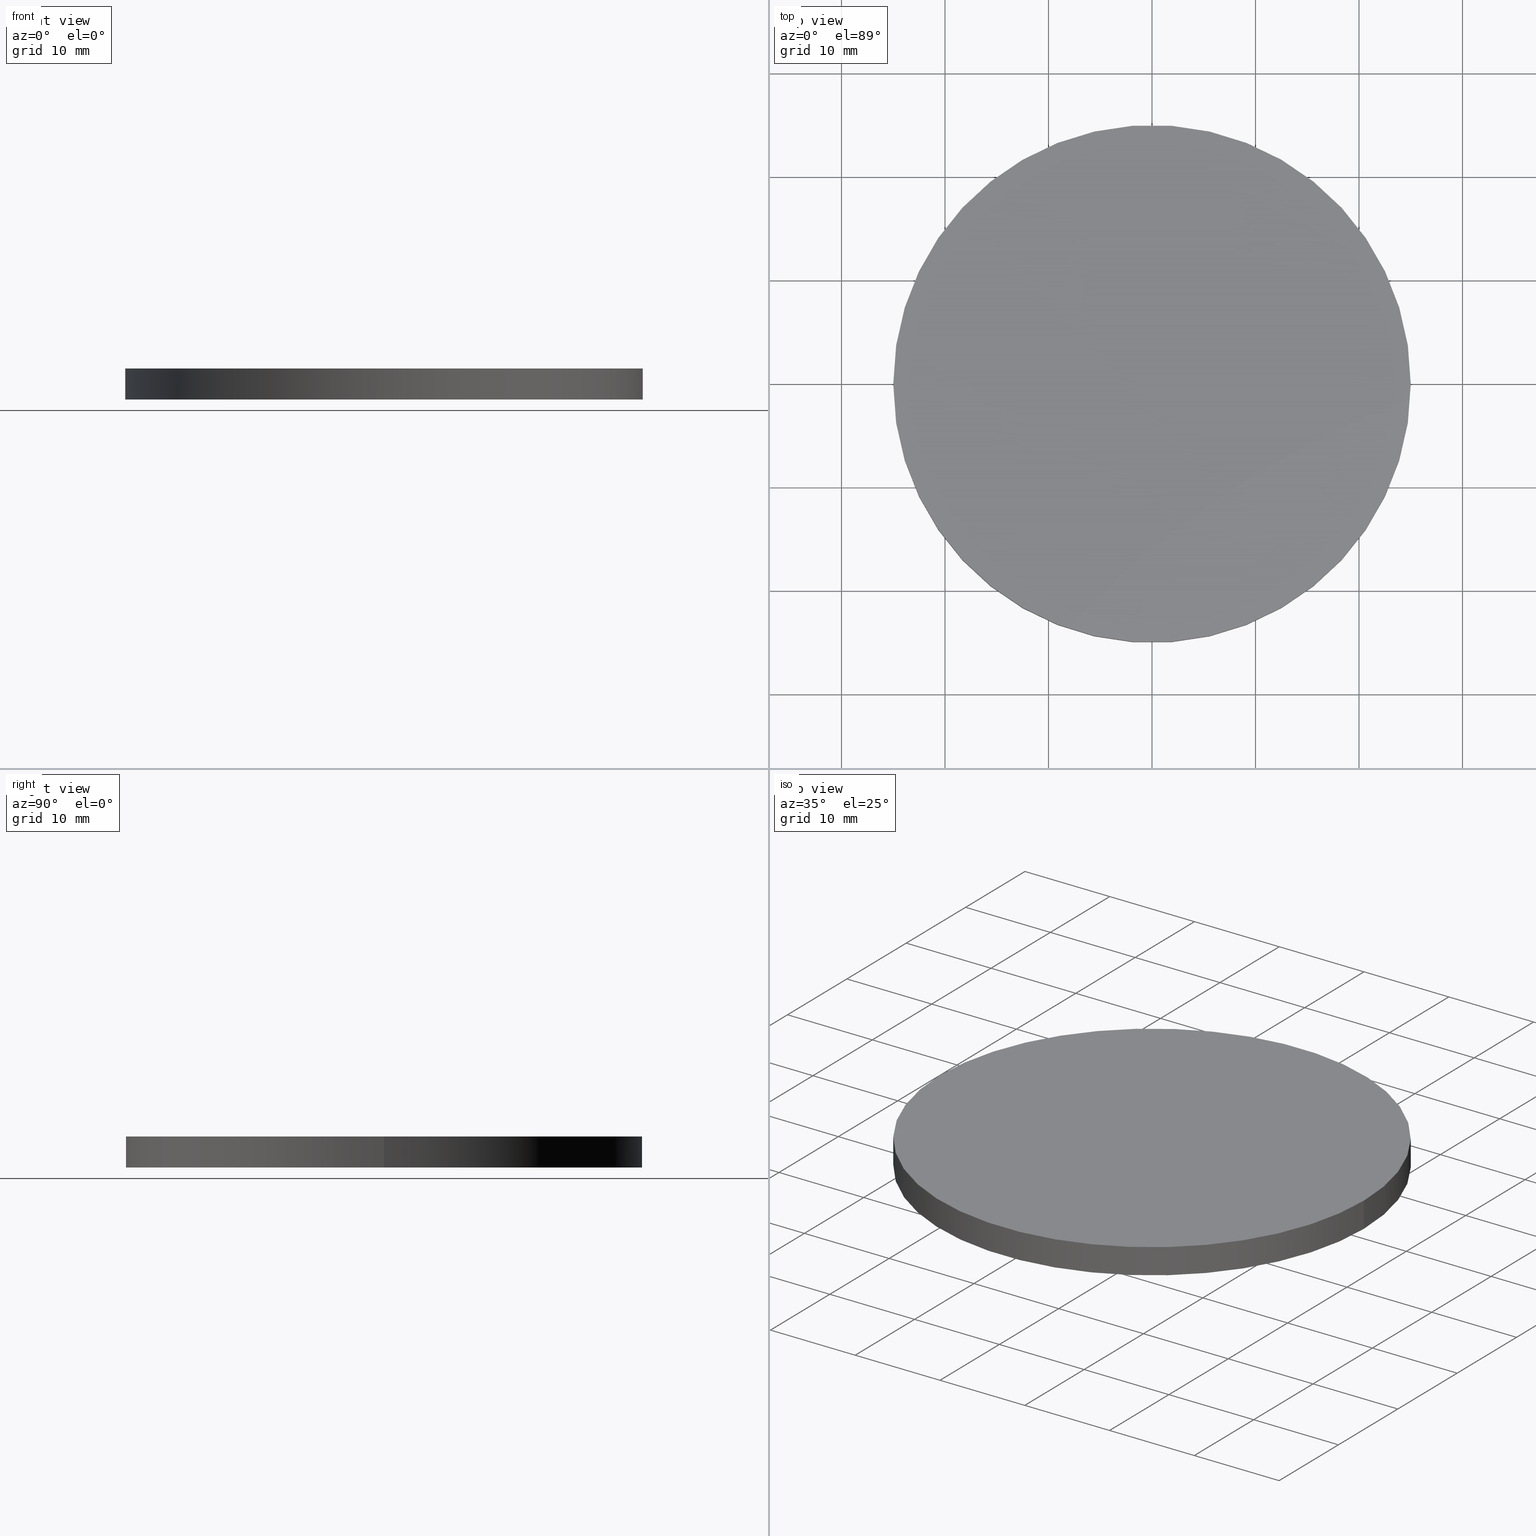
[diagram: canonical four-view strip — front | top / right | iso, engineering-drawing reading convention]
A machine part, canonical four-view strip (front | top / right | iso — engineering-drawing reading convention). The complete STEP part file that produces these views, byte-faithful:
ISO-10303-21;
HEADER;
FILE_DESCRIPTION (( 'STEP AP214' ),
    '1' );
FILE_NAME ('190131.STEP',
    '2019-07-17T06:58:16',
    ( 'user' ),
    ( '΢���й�' ),
    'SwSTEP 2.0',
    'SolidWorks 2016',
    '' );
FILE_SCHEMA (( 'AUTOMOTIVE_DESIGN' ));
ENDSEC;

DATA;
#1 = CARTESIAN_POINT ( 'NONE',  ( 0.0000000000000000000, 0.0000000000000000000, 3.000000000000000000 ) ) ;
#2 = VECTOR ( 'NONE', #96, 1000.000000000000000 ) ;
#3 = FILL_AREA_STYLE ('',( #99 ) ) ;
#4 = EDGE_CURVE ( 'NONE', #125, #10, #67, .T. ) ;
#5 = AXIS2_PLACEMENT_3D ( 'NONE', #47, #106, #34 ) ;
#6 = COLOUR_RGB ( '',1.000000000000000000, 1.000000000000000000, 1.000000000000000000 ) ;
#7 = FACE_OUTER_BOUND ( 'NONE', #80, .T. ) ;
#8 = CARTESIAN_POINT ( 'NONE',  ( 0.0000000000000000000, 0.0000000000000000000, 3.000000000000000000 ) ) ;
#9 = AXIS2_PLACEMENT_3D ( 'NONE', #131, #13, #132 ) ;
#10 = VERTEX_POINT ( 'NONE', #68 ) ;
#11 =( NAMED_UNIT ( * ) SI_UNIT ( $, .STERADIAN. ) SOLID_ANGLE_UNIT ( ) );
#12 = DIRECTION ( 'NONE',  ( 1.000000000000000000, 0.0000000000000000000, 0.0000000000000000000 ) ) ;
#13 = DIRECTION ( 'NONE',  ( 0.0000000000000000000, 0.0000000000000000000, 1.000000000000000000 ) ) ;
#14 = DIRECTION ( 'NONE',  ( 1.000000000000000000, 0.0000000000000000000, 0.0000000000000000000 ) ) ;
#15 = ORIENTED_EDGE ( 'NONE', *, *, #4, .F. ) ;
#16 = EDGE_LOOP ( 'NONE', ( #22, #91 ) ) ;
#17 =( NAMED_UNIT ( * ) PLANE_ANGLE_UNIT ( ) SI_UNIT ( $, .RADIAN. ) );
#18 = DIRECTION ( 'NONE',  ( -0.0000000000000000000, -0.0000000000000000000, -1.000000000000000000 ) ) ;
#19 =( LENGTH_UNIT ( ) NAMED_UNIT ( * ) SI_UNIT ( .MILLI., .METRE. ) );
#20 = CARTESIAN_POINT ( 'NONE',  ( 25.00000000000000000, 3.061616997868383000E-015, 3.000000000000000000 ) ) ;
#21 = CARTESIAN_POINT ( 'NONE',  ( 25.00000000000000000, 3.061616997868383000E-015, 3.000000000000000000 ) ) ;
#22 = ORIENTED_EDGE ( 'NONE', *, *, #95, .F. ) ;
#23 = SURFACE_STYLE_USAGE ( .BOTH. , #40 ) ;
#24 =( GEOMETRIC_REPRESENTATION_CONTEXT ( 3 ) GLOBAL_UNCERTAINTY_ASSIGNED_CONTEXT ( ( #37 ) ) GLOBAL_UNIT_ASSIGNED_CONTEXT ( ( #93, #59, #48 ) ) REPRESENTATION_CONTEXT ( 'NONE', 'WORKASPACE' ) );
#25 = DIRECTION ( 'NONE',  ( 1.000000000000000000, 0.0000000000000000000, 0.0000000000000000000 ) ) ;
#26 = PRESENTATION_LAYER_ASSIGNMENT (  '', '', ( #118 ) ) ;
#27 = CIRCLE ( 'NONE', #9, 25.00000000000000000 ) ;
#28 = ORIENTED_EDGE ( 'NONE', *, *, #51, .F. ) ;
#29 = UNCERTAINTY_MEASURE_WITH_UNIT (LENGTH_MEASURE( 1.000000000000000100E-005 ), #45, 'distance_accuracy_value', 'NONE');
#30 = FACE_OUTER_BOUND ( 'NONE', #52, .T. ) ;
#31 = AXIS2_PLACEMENT_3D ( 'NONE', #122, #63, #117 ) ;
#32 =( GEOMETRIC_REPRESENTATION_CONTEXT ( 3 ) GLOBAL_UNCERTAINTY_ASSIGNED_CONTEXT ( ( #29 ) ) GLOBAL_UNIT_ASSIGNED_CONTEXT ( ( #45, #128, #121 ) ) REPRESENTATION_CONTEXT ( 'NONE', 'WORKASPACE' ) );
#33 = ORIENTED_EDGE ( 'NONE', *, *, #101, .F. ) ;
#34 = DIRECTION ( 'NONE',  ( 1.000000000000000000, 0.0000000000000000000, -0.0000000000000000000 ) ) ;
#35 = LINE ( 'NONE', #21, #53 ) ;
#36 = DIRECTION ( 'NONE',  ( 1.000000000000000000, 0.0000000000000000000, 0.0000000000000000000 ) ) ;
#37 = UNCERTAINTY_MEASURE_WITH_UNIT (LENGTH_MEASURE( 1.000000000000000100E-005 ), #93, 'distance_accuracy_value', 'NONE');
#38 = APPLICATION_PROTOCOL_DEFINITION ( 'draft international standard', 'automotive_design', 1998, #81 ) ;
#39 = DIRECTION ( 'NONE',  ( -1.000000000000000000, 0.0000000000000000000, 0.0000000000000000000 ) ) ;
#40 = SURFACE_SIDE_STYLE ('',( #75 ) ) ;
#41 = MANIFOLD_SOLID_BREP ( '͹̨-����1', #135 ) ;
#42 = STYLED_ITEM ( 'NONE', ( #55 ), #88 ) ;
#43 = EDGE_LOOP ( 'NONE', ( #127, #28, #84, #87 ) ) ;
#44 = MECHANICAL_DESIGN_GEOMETRIC_PRESENTATION_REPRESENTATION (  '', ( #118 ), #32 ) ;
#45 =( LENGTH_UNIT ( ) NAMED_UNIT ( * ) SI_UNIT ( .MILLI., .METRE. ) );
#46 = CARTESIAN_POINT ( 'NONE',  ( 25.00000000000000000, 3.061616997868383000E-015, 0.0000000000000000000 ) ) ;
#47 = CARTESIAN_POINT ( 'NONE',  ( 0.0000000000000000000, 0.0000000000000000000, 3.000000000000000000 ) ) ;
#48 =( NAMED_UNIT ( * ) SI_UNIT ( $, .STERADIAN. ) SOLID_ANGLE_UNIT ( ) );
#49 = AXIS2_PLACEMENT_3D ( 'NONE', #1, #50, #78 ) ;
#50 = DIRECTION ( 'NONE',  ( -0.0000000000000000000, -0.0000000000000000000, -1.000000000000000000 ) ) ;
#51 = EDGE_CURVE ( 'NONE', #10, #125, #83, .T. ) ;
#52 = EDGE_LOOP ( 'NONE', ( #15, #92, #104, #33 ) ) ;
#53 = VECTOR ( 'NONE', #18, 1000.000000000000000 ) ;
#54 = ADVANCED_FACE ( 'NONE', ( #100 ), #60, .T. ) ;
#55 = PRESENTATION_STYLE_ASSIGNMENT (( #23 ) ) ;
#56 = CARTESIAN_POINT ( 'NONE',  ( 0.0000000000000000000, 0.0000000000000000000, 3.000000000000000000 ) ) ;
#57 = VERTEX_POINT ( 'NONE', #74 ) ;
#58 = FILL_AREA_STYLE_COLOUR ( '', #133 ) ;
#59 =( NAMED_UNIT ( * ) PLANE_ANGLE_UNIT ( ) SI_UNIT ( $, .RADIAN. ) );
#60 = CYLINDRICAL_SURFACE ( 'NONE', #136, 25.00000000000000000 ) ;
#61 = CARTESIAN_POINT ( 'NONE',  ( 0.0000000000000000000, 0.0000000000000000000, 3.000000000000000000 ) ) ;
#62 = ORIENTED_EDGE ( 'NONE', *, *, #4, .T. ) ;
#63 = DIRECTION ( 'NONE',  ( 0.0000000000000000000, 0.0000000000000000000, 1.000000000000000000 ) ) ;
#64 = CYLINDRICAL_SURFACE ( 'NONE', #49, 25.00000000000000000 ) ;
#65 = PRESENTATION_LAYER_ASSIGNMENT (  '', '', ( #42 ) ) ;
#66 = ADVANCED_FACE ( 'NONE', ( #7 ), #129, .T. ) ;
#67 = CIRCLE ( 'NONE', #69, 25.00000000000000000 ) ;
#68 = CARTESIAN_POINT ( 'NONE',  ( -25.00000000000000000, 0.0000000000000000000, 3.000000000000000000 ) ) ;
#69 = AXIS2_PLACEMENT_3D ( 'NONE', #8, #123, #25 ) ;
#70 = SURFACE_SIDE_STYLE ('',( #126 ) ) ;
#71 = DIRECTION ( 'NONE',  ( 0.0000000000000000000, 0.0000000000000000000, 1.000000000000000000 ) ) ;
#72 = MECHANICAL_DESIGN_GEOMETRIC_PRESENTATION_REPRESENTATION (  '', ( #42 ), #77 ) ;
#73 = CARTESIAN_POINT ( 'NONE',  ( -25.00000000000000000, 0.0000000000000000000, 3.000000000000000000 ) ) ;
#74 = CARTESIAN_POINT ( 'NONE',  ( -25.00000000000000000, 0.0000000000000000000, 0.0000000000000000000 ) ) ;
#75 = SURFACE_STYLE_FILL_AREA ( #86 ) ;
#76 = PRODUCT_DEFINITION_SHAPE ( 'NONE', 'NONE',  #124 ) ;
#77 =( GEOMETRIC_REPRESENTATION_CONTEXT ( 3 ) GLOBAL_UNCERTAINTY_ASSIGNED_CONTEXT ( ( #94 ) ) GLOBAL_UNIT_ASSIGNED_CONTEXT ( ( #19, #17, #11 ) ) REPRESENTATION_CONTEXT ( 'NONE', 'WORKASPACE' ) );
#78 = DIRECTION ( 'NONE',  ( -1.000000000000000000, 0.0000000000000000000, 0.0000000000000000000 ) ) ;
#79 = EDGE_CURVE ( 'NONE', #103, #57, #89, .T. ) ;
#80 = EDGE_LOOP ( 'NONE', ( #109, #62 ) ) ;
#81 = APPLICATION_CONTEXT ( 'automotive_design' ) ;
#82 = CARTESIAN_POINT ( 'NONE',  ( 0.0000000000000000000, 0.0000000000000000000, 0.0000000000000000000 ) ) ;
#83 = CIRCLE ( 'NONE', #112, 25.00000000000000000 ) ;
#84 = ORIENTED_EDGE ( 'NONE', *, *, #101, .T. ) ;
#85 = FACE_OUTER_BOUND ( 'NONE', #16, .T. ) ;
#86 = FILL_AREA_STYLE ('',( #58 ) ) ;
#87 = ORIENTED_EDGE ( 'NONE', *, *, #95, .T. ) ;
#88 = ADVANCED_BREP_SHAPE_REPRESENTATION ( '190131', ( #41, #114 ), #24 ) ;
#89 = CIRCLE ( 'NONE', #119, 25.00000000000000000 ) ;
#90 = DIRECTION ( 'NONE',  ( 0.0000000000000000000, 0.0000000000000000000, 1.000000000000000000 ) ) ;
#91 = ORIENTED_EDGE ( 'NONE', *, *, #79, .F. ) ;
#92 = ORIENTED_EDGE ( 'NONE', *, *, #115, .T. ) ;
#93 =( LENGTH_UNIT ( ) NAMED_UNIT ( * ) SI_UNIT ( .MILLI., .METRE. ) );
#94 = UNCERTAINTY_MEASURE_WITH_UNIT (LENGTH_MEASURE( 1.000000000000000100E-005 ), #19, 'distance_accuracy_value', 'NONE');
#95 = EDGE_CURVE ( 'NONE', #57, #103, #27, .T. ) ;
#96 = DIRECTION ( 'NONE',  ( -0.0000000000000000000, -0.0000000000000000000, -1.000000000000000000 ) ) ;
#97 = PLANE ( 'NONE',  #31 ) ;
#98 = DIRECTION ( 'NONE',  ( 0.0000000000000000000, 0.0000000000000000000, 1.000000000000000000 ) ) ;
#99 = FILL_AREA_STYLE_COLOUR ( '', #6 ) ;
#100 = FACE_OUTER_BOUND ( 'NONE', #43, .T. ) ;
#101 = EDGE_CURVE ( 'NONE', #10, #57, #134, .T. ) ;
#102 = PRODUCT ( '190131', '190131', '', ( #108 ) ) ;
#103 = VERTEX_POINT ( 'NONE', #46 ) ;
#104 = ORIENTED_EDGE ( 'NONE', *, *, #79, .T. ) ;
#105 = DIRECTION ( 'NONE',  ( -0.0000000000000000000, -0.0000000000000000000, -1.000000000000000000 ) ) ;
#106 = DIRECTION ( 'NONE',  ( 0.0000000000000000000, 0.0000000000000000000, 1.000000000000000000 ) ) ;
#107 = CARTESIAN_POINT ( 'NONE',  ( 0.0000000000000000000, 0.0000000000000000000, 0.0000000000000000000 ) ) ;
#108 = PRODUCT_CONTEXT ( 'NONE', #81, 'mechanical' ) ;
#109 = ORIENTED_EDGE ( 'NONE', *, *, #51, .T. ) ;
#110 = APPLICATION_PROTOCOL_DEFINITION ( 'draft international standard', 'automotive_design', 1998, #140 ) ;
#111 = SHAPE_DEFINITION_REPRESENTATION ( #76, #88 ) ;
#112 = AXIS2_PLACEMENT_3D ( 'NONE', #56, #90, #12 ) ;
#113 = PRODUCT_DEFINITION_CONTEXT ( 'detailed design', #140, 'design' ) ;
#114 = AXIS2_PLACEMENT_3D ( 'NONE', #107, #71, #36 ) ;
#115 = EDGE_CURVE ( 'NONE', #125, #103, #35, .T. ) ;
#116 = PRESENTATION_STYLE_ASSIGNMENT (( #120 ) ) ;
#117 = DIRECTION ( 'NONE',  ( 1.000000000000000000, 0.0000000000000000000, -0.0000000000000000000 ) ) ;
#118 = STYLED_ITEM ( 'NONE', ( #116 ), #41 ) ;
#119 = AXIS2_PLACEMENT_3D ( 'NONE', #82, #98, #14 ) ;
#120 = SURFACE_STYLE_USAGE ( .BOTH. , #70 ) ;
#121 =( NAMED_UNIT ( * ) SI_UNIT ( $, .STERADIAN. ) SOLID_ANGLE_UNIT ( ) );
#122 = CARTESIAN_POINT ( 'NONE',  ( 0.0000000000000000000, 0.0000000000000000000, 0.0000000000000000000 ) ) ;
#123 = DIRECTION ( 'NONE',  ( 0.0000000000000000000, 0.0000000000000000000, 1.000000000000000000 ) ) ;
#124 = PRODUCT_DEFINITION ( 'δ֪', '', #130, #113 ) ;
#125 = VERTEX_POINT ( 'NONE', #20 ) ;
#126 = SURFACE_STYLE_FILL_AREA ( #3 ) ;
#127 = ORIENTED_EDGE ( 'NONE', *, *, #115, .F. ) ;
#128 =( NAMED_UNIT ( * ) PLANE_ANGLE_UNIT ( ) SI_UNIT ( $, .RADIAN. ) );
#129 = PLANE ( 'NONE',  #5 ) ;
#130 = PRODUCT_DEFINITION_FORMATION_WITH_SPECIFIED_SOURCE ( '�κ�', '', #102, .NOT_KNOWN. ) ;
#131 = CARTESIAN_POINT ( 'NONE',  ( 0.0000000000000000000, 0.0000000000000000000, 0.0000000000000000000 ) ) ;
#132 = DIRECTION ( 'NONE',  ( 1.000000000000000000, 0.0000000000000000000, 0.0000000000000000000 ) ) ;
#133 = COLOUR_RGB ( '',1.000000000000000000, 1.000000000000000000, 1.000000000000000000 ) ;
#134 = LINE ( 'NONE', #73, #2 ) ;
#135 = CLOSED_SHELL ( 'NONE', ( #139, #54, #66, #138 ) ) ;
#136 = AXIS2_PLACEMENT_3D ( 'NONE', #61, #105, #39 ) ;
#137 = PRODUCT_RELATED_PRODUCT_CATEGORY ( 'part', '', ( #102 ) ) ;
#138 = ADVANCED_FACE ( 'NONE', ( #85 ), #97, .F. ) ;
#139 = ADVANCED_FACE ( 'NONE', ( #30 ), #64, .T. ) ;
#140 = APPLICATION_CONTEXT ( 'automotive_design' ) ;
ENDSEC;
END-ISO-10303-21;
